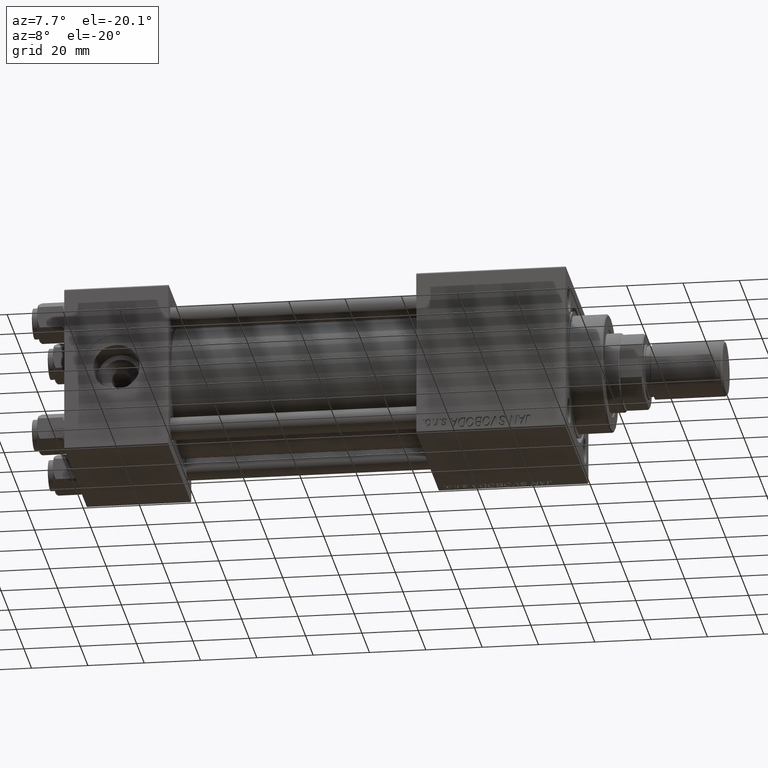
[diagram: clean part render]
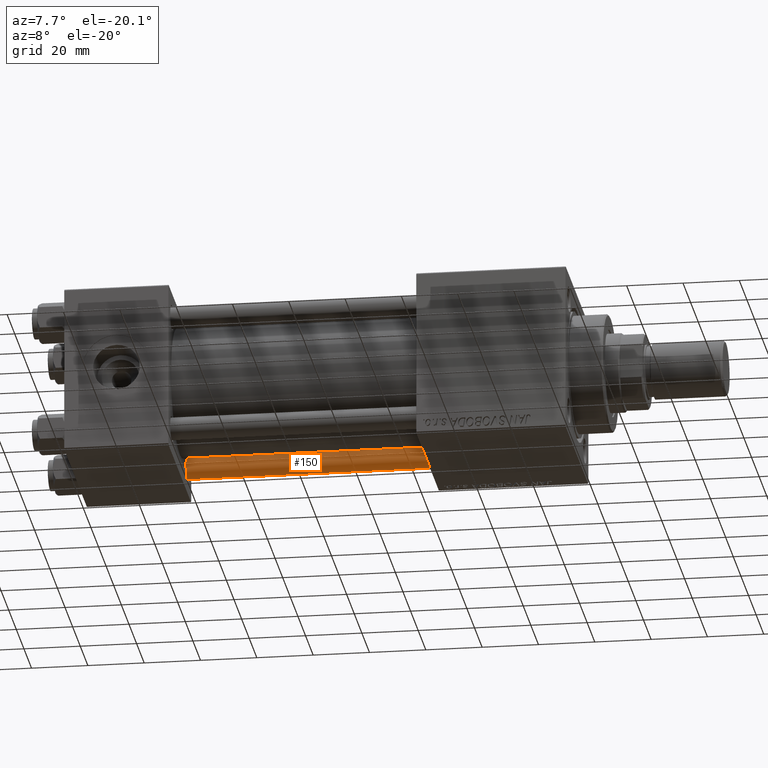
[diagram: same view with one face highlighted and labeled with its STEP entity id]
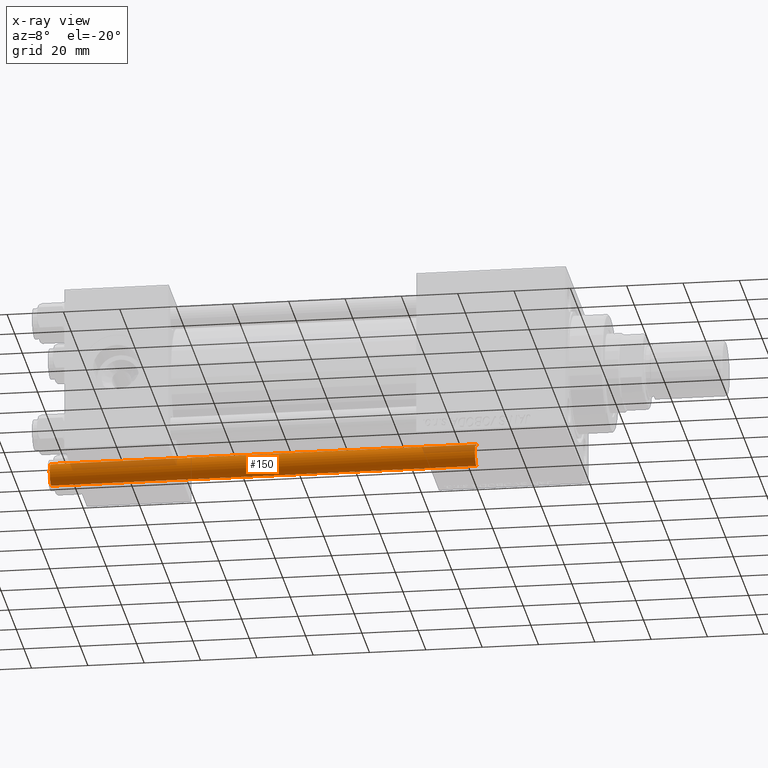
[diagram: x-ray of the same camera — body ghosted, the highlighted face saturated]
A machine part, auxiliary view. The second image highlights one B-rep face of the part: STEP entity #150.
The next image is the same camera in x-ray: the body ghosted, the highlighted face saturated — about 12% of this face is hidden behind the body in this view.
In plain terms, the highlighted cylindrical surface (edge-blend (fillet) strip) has radius 4 mm, axis along (1, -0, 0).
Its self-contained STEP definition (entity closure, byte-faithful):
#150 = ADVANCED_FACE ( 'NONE', ( #44761 ), #9684, .T. ) ;
#3130 = CIRCLE ( 'NONE', #28473, 4.000000000000000000 ) ;
#3174 = LINE ( 'NONE', #6267, #39685 ) ;
#4200 = VERTEX_POINT ( 'NONE', #32898 ) ;
#5248 = DIRECTION ( 'NONE',  ( 1.000000000000000000, 0.000000000000000000, 0.000000000000000000 ) ) ;
#5921 = EDGE_CURVE ( 'NONE', #38995, #4200, #3174, .T. ) ;
#6267 = CARTESIAN_POINT ( 'NONE',  ( 4.000000000000000000, 4.898587196589412829E-16, 152.0000000000000000 ) ) ;
#7162 = VERTEX_POINT ( 'NONE', #19971 ) ;
#8558 = CARTESIAN_POINT ( 'NONE',  ( 4.000000000000000000, 4.898587196589412829E-16, 151.5000000000000284 ) ) ;
#9039 = VECTOR ( 'NONE', #13177, 1000.000000000000000 ) ;
#9684 = CYLINDRICAL_SURFACE ( 'NONE', #38700, 4.000000000000000000 ) ;
#13177 = DIRECTION ( 'NONE',  ( -0.000000000000000000, -0.000000000000000000, -1.000000000000000000 ) ) ;
#19172 = DIRECTION ( 'NONE',  ( 1.000000000000000000, 0.000000000000000000, 0.000000000000000000 ) ) ;
#19849 = CIRCLE ( 'NONE', #37014, 4.000000000000000000 ) ;
#19971 = CARTESIAN_POINT ( 'NONE',  ( -4.000000000000000000, 0.000000000000000000, 151.5000000000000284 ) ) ;
#21008 = VERTEX_POINT ( 'NONE', #33200 ) ;
#21409 = EDGE_LOOP ( 'NONE', ( #38319, #38378, #45222, #24424 ) ) ;
#21473 = CARTESIAN_POINT ( 'NONE',  ( 0.000000000000000000, 0.000000000000000000, 152.0000000000000000 ) ) ;
#22051 = EDGE_CURVE ( 'NONE', #38995, #7162, #19849, .T. ) ;
#24424 = ORIENTED_EDGE ( 'NONE', *, *, #35718, .T. ) ;
#25819 = DIRECTION ( 'NONE',  ( -1.000000000000000000, 0.000000000000000000, 0.000000000000000000 ) ) ;
#27607 = CARTESIAN_POINT ( 'NONE',  ( 0.000000000000000000, 0.000000000000000000, 0.5000000000000281997 ) ) ;
#28473 = AXIS2_PLACEMENT_3D ( 'NONE', #27607, #39640, #19172 ) ;
#32898 = CARTESIAN_POINT ( 'NONE',  ( 4.000000000000000000, 4.898587196589412829E-16, 0.5000000000000281997 ) ) ;
#33200 = CARTESIAN_POINT ( 'NONE',  ( -4.000000000000000000, 0.000000000000000000, 0.5000000000000281997 ) ) ;
#35718 = EDGE_CURVE ( 'NONE', #21008, #4200, #3130, .T. ) ;
#37014 = AXIS2_PLACEMENT_3D ( 'NONE', #40331, #43667, #5248 ) ;
#37492 = CARTESIAN_POINT ( 'NONE',  ( -4.000000000000000000, 0.000000000000000000, 152.0000000000000000 ) ) ;
#38319 = ORIENTED_EDGE ( 'NONE', *, *, #5921, .F. ) ;
#38378 = ORIENTED_EDGE ( 'NONE', *, *, #22051, .T. ) ;
#38700 = AXIS2_PLACEMENT_3D ( 'NONE', #21473, #45524, #25819 ) ;
#38995 = VERTEX_POINT ( 'NONE', #8558 ) ;
#39640 = DIRECTION ( 'NONE',  ( -0.000000000000000000, -0.000000000000000000, 1.000000000000000000 ) ) ;
#39685 = VECTOR ( 'NONE', #46206, 1000.000000000000000 ) ;
#40331 = CARTESIAN_POINT ( 'NONE',  ( 0.000000000000000000, 0.000000000000000000, 151.5000000000000284 ) ) ;
#41340 = LINE ( 'NONE', #37492, #9039 ) ;
#43667 = DIRECTION ( 'NONE',  ( 0.000000000000000000, 0.000000000000000000, -1.000000000000000000 ) ) ;
#44761 = FACE_OUTER_BOUND ( 'NONE', #21409, .T. ) ;
#45222 = ORIENTED_EDGE ( 'NONE', *, *, #49036, .T. ) ;
#45524 = DIRECTION ( 'NONE',  ( -0.000000000000000000, -0.000000000000000000, -1.000000000000000000 ) ) ;
#46206 = DIRECTION ( 'NONE',  ( -0.000000000000000000, -0.000000000000000000, -1.000000000000000000 ) ) ;
#49036 = EDGE_CURVE ( 'NONE', #7162, #21008, #41340, .T. ) ;